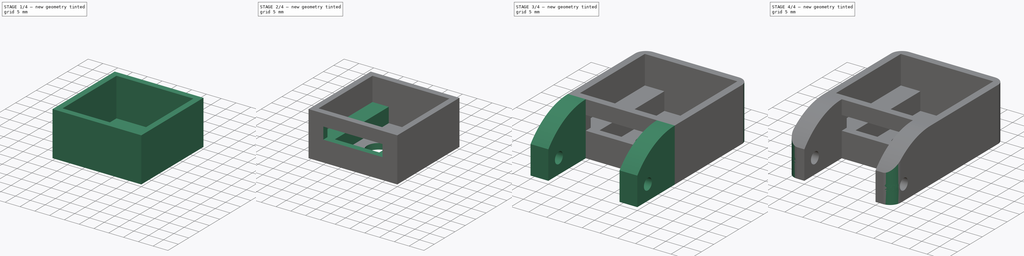
[diagram: build sequence overview — one tinted view per stage of 4, left to right]
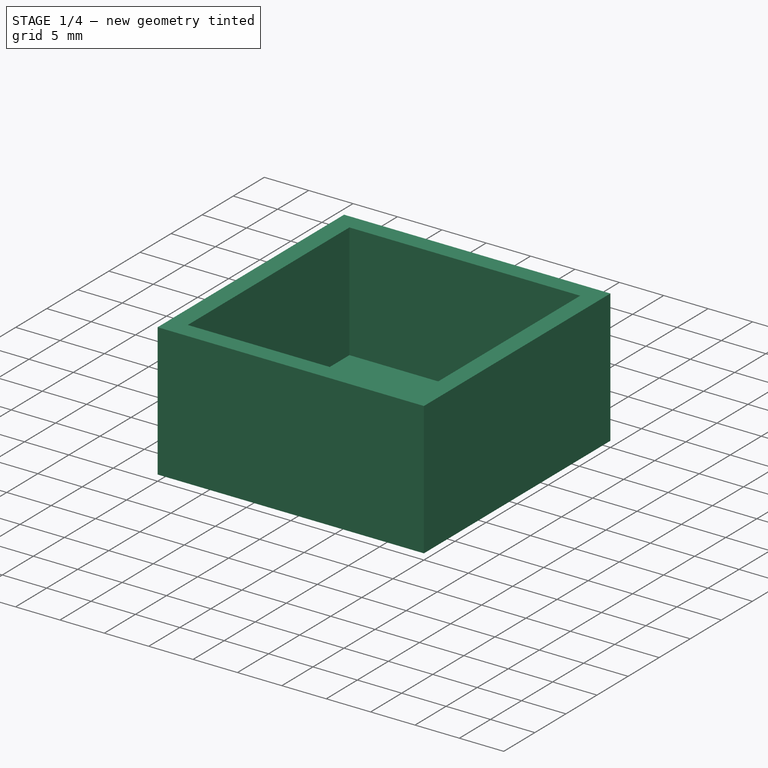
[diagram: stage 1 of 4 — iso view after this stage's code; geometry added in this stage tinted green]
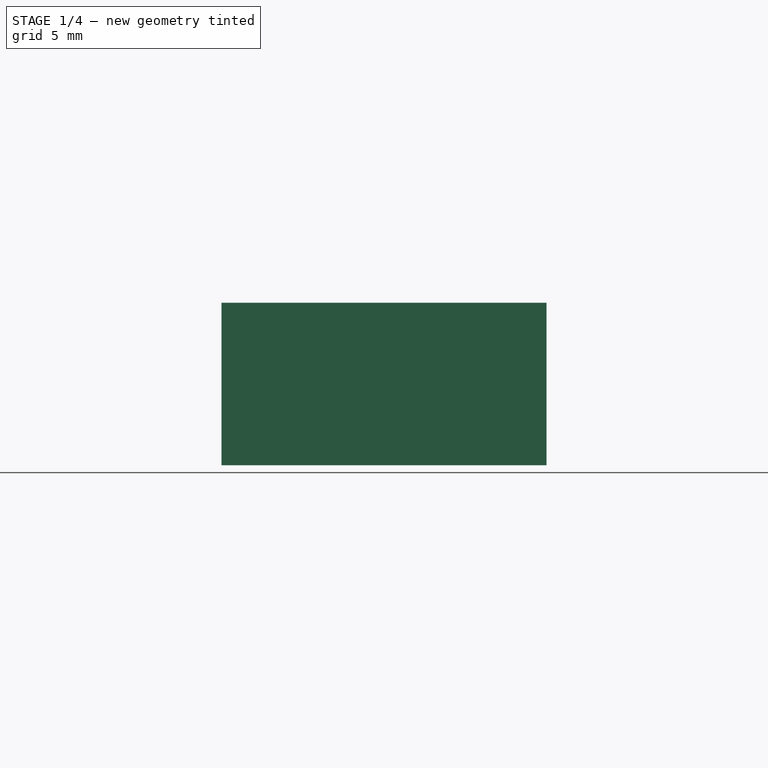
[diagram: stage 1 of 4 — front view after this stage's code; geometry added in this stage tinted green]
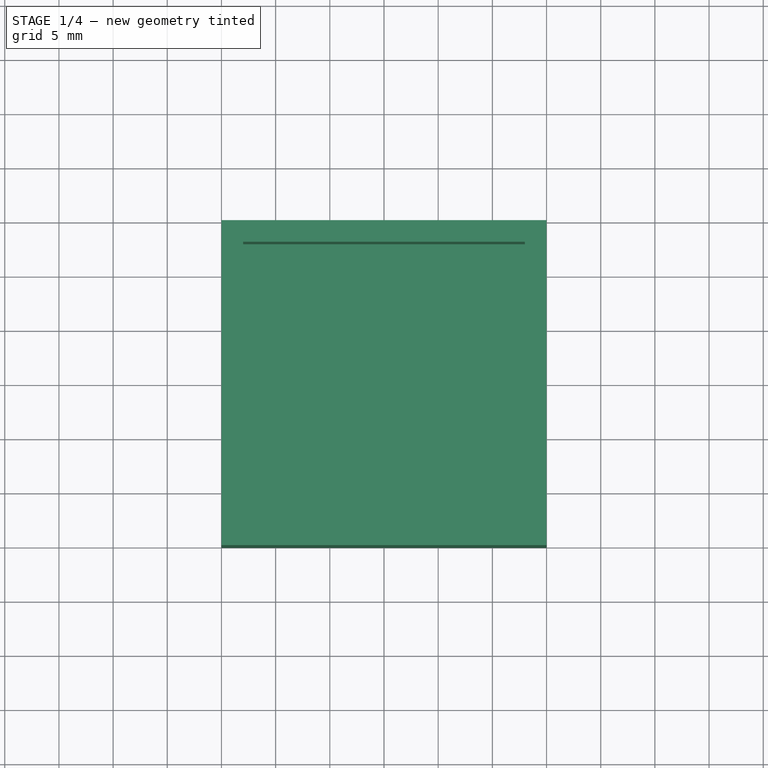
[diagram: stage 1 of 4 — top view after this stage's code; geometry added in this stage tinted green]
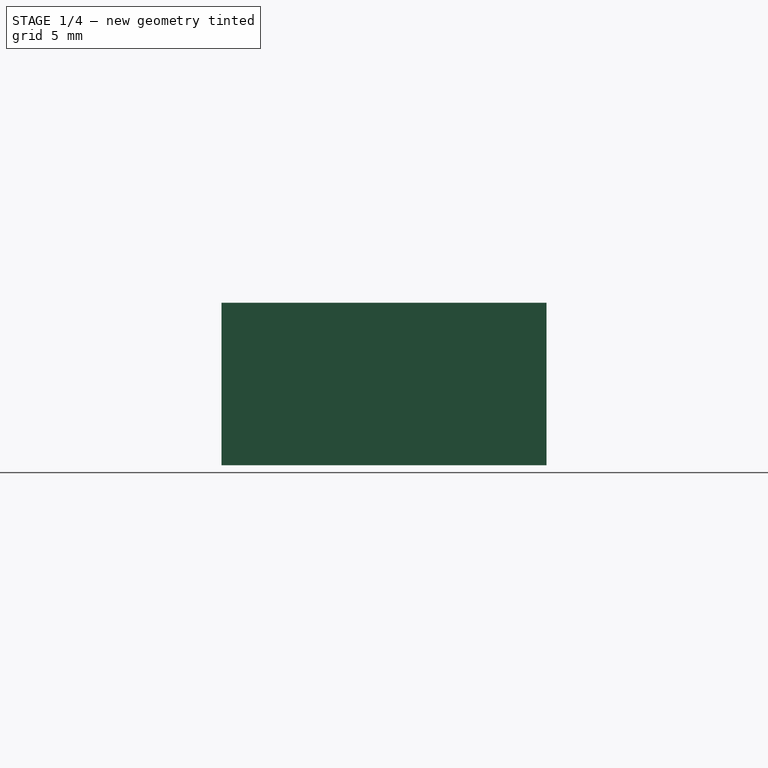
[diagram: stage 1 of 4 — right view after this stage's code; geometry added in this stage tinted green]
FCSTD DOCUMENT  (FreeCAD 0.19R24291 (Git))
Label: CamBox
License: All rights reserved
LicenseURL: http://en.wikipedia.org/wiki/All_rights_reserved
objects: Sketcher::SketchObject×7, App::MeasureDistance×5, PartDesign::Pocket×4, PartDesign::Pad×3, PartDesign::Fillet×3, PartDesign::Body×1
note: 28 computed .brp shape members not serialized (recipe doc carries the construction recipe); baked Part::Feature solids carry a one-line shape summary decoded from their .brp

FEATURE [Sketcher::SketchObject] Sketch
  FullyConstrained = true
  MapMode = 5
  Support = -> [XY_Plane]
  sketch-geometry (4):
    g0: LineSegment StartX=0 StartY=0 StartZ=0 EndX=-30 EndY=0 EndZ=0
    g1: LineSegment StartX=-30 StartY=0 StartZ=0 EndX=-30 EndY=30 EndZ=0
    g2: LineSegment StartX=-30 StartY=30 StartZ=0 EndX=0 EndY=30 EndZ=0
    g3: LineSegment StartX=0 StartY=30 StartZ=0 EndX=0 EndY=0 EndZ=0
  constraints (11):
    c: Coincident(g0,g1)
    c: Coincident(g1,g2)
    c: Coincident(g2,g3)
    c: Coincident(g3,g0)
    c: Horizontal(g0)
    c: Horizontal(g2)
    c: Vertical(g1)
    c: Vertical(g3)
    c: Coincident(g0,g-1)
    c: Equal(g2,g1)
    c: DistanceX(g2,g2) = 30
FEATURE [PartDesign::Pad] Pad
  Direction = (1,1,1)
  Length = 15
  Length2 = 100
  Profile = -> Sketch
  Type = 0
FEATURE [Sketcher::SketchObject] Sketch001
  ExternalGeometry = -> [Pad]
  FullyConstrained = true
  MapMode = 5
  Placement = pos=(0,0,15) rot=(0,0,1;0rad)
  Support = -> [Pad]
  sketch-geometry (4):
    g0: LineSegment StartX=-28 StartY=28 StartZ=0 EndX=-2 EndY=28 EndZ=0
    g1: LineSegment StartX=-2 StartY=28 StartZ=0 EndX=-2 EndY=2 EndZ=0
    g2: LineSegment StartX=-2 StartY=2 StartZ=0 EndX=-28 EndY=2 EndZ=0
    g3: LineSegment StartX=-28 StartY=2 StartZ=0 EndX=-28 EndY=28 EndZ=0
  constraints (12):
    c: Coincident(g0,g1)
    c: Coincident(g1,g2)
    c: Coincident(g2,g3)
    c: Coincident(g3,g0)
    c: Horizontal(g0)
    c: Horizontal(g2)
    c: Vertical(g1)
    c: Vertical(g3)
    c: DistanceX(g-2,g0) = -2
    c: Distance(g0,g-4) = 2
    c: Distance(g0,g-3) = 2
    c: Distance(g1,g-5) = 2
FEATURE [PartDesign::Pocket] Pocket
  BaseFeature = -> Pad
  Length = 13
  Length2 = 100
  Profile = -> Sketch001
  Type = 0
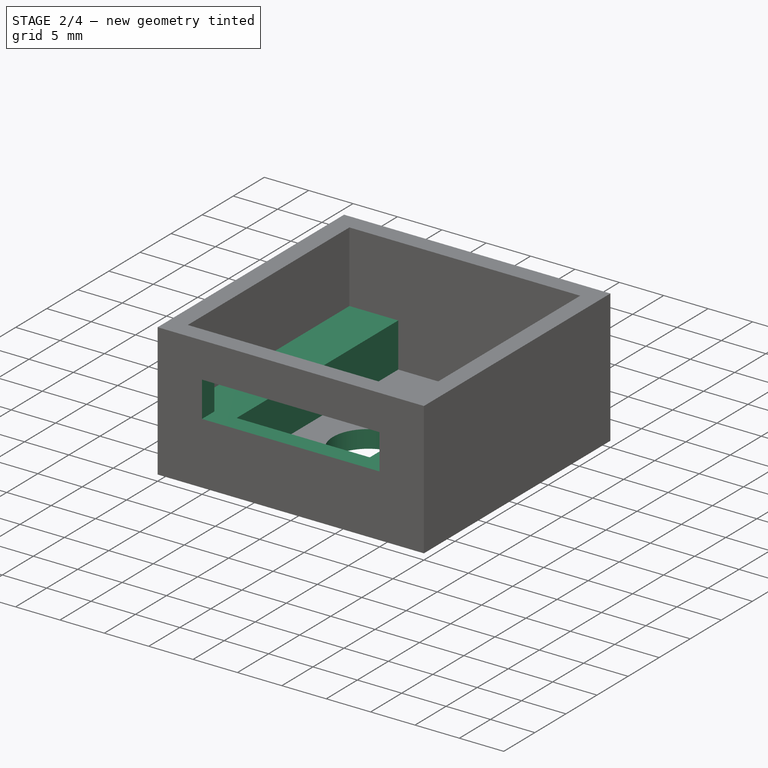
[diagram: stage 2 of 4 — iso view after this stage's code; geometry added in this stage tinted green]
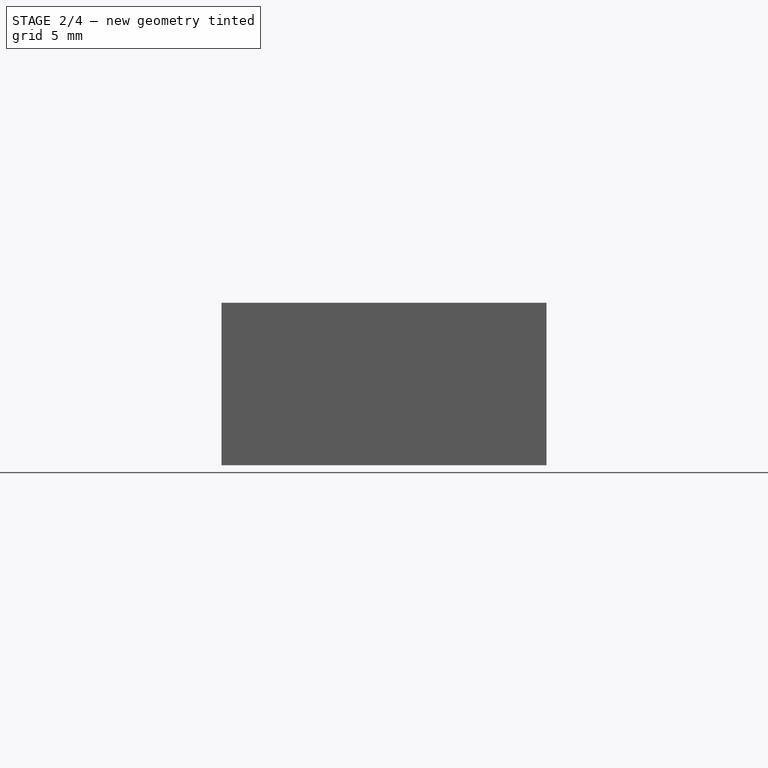
[diagram: stage 2 of 4 — front view after this stage's code; geometry added in this stage tinted green]
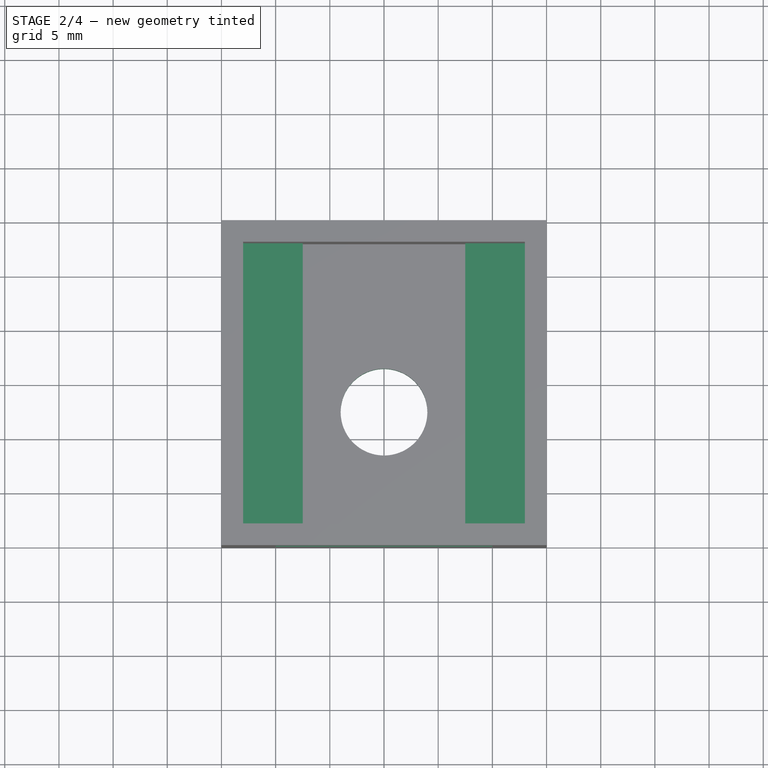
[diagram: stage 2 of 4 — top view after this stage's code; geometry added in this stage tinted green]
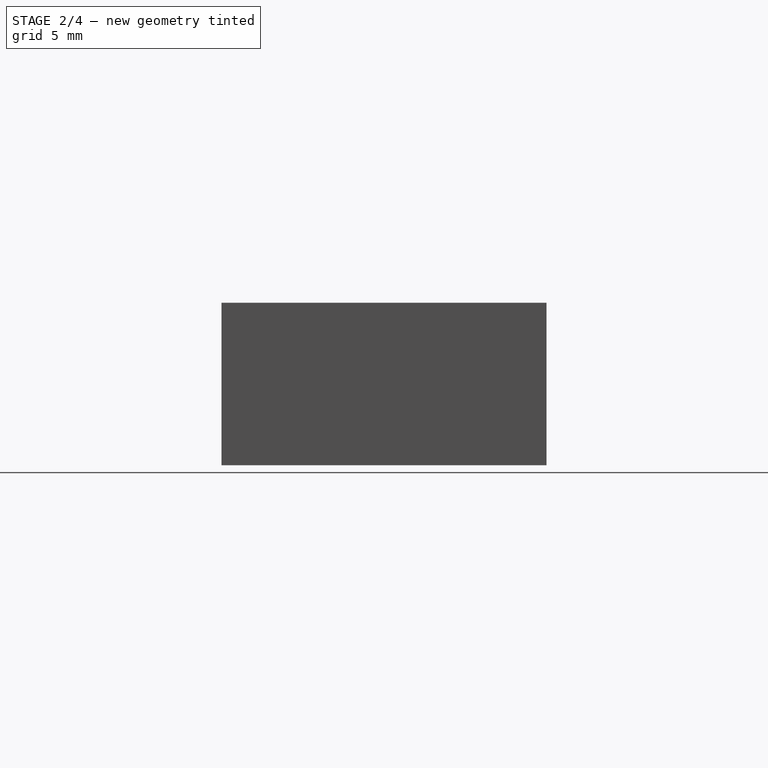
[diagram: stage 2 of 4 — right view after this stage's code; geometry added in this stage tinted green]
FEATURE [App::MeasureDistance] Distance  label="Distance: 25,97 mm"
  Distance = 25.9733
  P1 = (-27.9436,28,10)
  P2 = (-1.97036,27.9612,10)
FEATURE [App::MeasureDistance] Distance001  label="Distance: 26,00 mm"
  Distance = 26
  P1 = (-28,2,10)
  P2 = (-27.9801,28,10)
FEATURE [Sketcher::SketchObject] Sketch002
  ExternalGeometry = -> [Pocket]
  FullyConstrained = true
  MapMode = 5
  Placement = pos=(0,0,2) rot=(0,0,1;0rad)
  Support = -> [Pocket]
  sketch-geometry (8):
    g0: LineSegment StartX=-28 StartY=28 StartZ=0 EndX=-22.5 EndY=28 EndZ=0
    g1: LineSegment StartX=-22.5 StartY=28 StartZ=0 EndX=-22.5 EndY=2 EndZ=0
    g2: LineSegment StartX=-22.5 StartY=2 StartZ=0 EndX=-28 EndY=2 EndZ=0
    g3: LineSegment StartX=-28 StartY=2 StartZ=0 EndX=-28 EndY=28 EndZ=0
    g4: LineSegment StartX=-2 StartY=2 StartZ=0 EndX=-7.5 EndY=2 EndZ=0
    g5: LineSegment StartX=-7.5 StartY=2 StartZ=0 EndX=-7.5 EndY=28 EndZ=0
    g6: LineSegment StartX=-7.5 StartY=28 StartZ=0 EndX=-2 EndY=28 EndZ=0
    g7: LineSegment StartX=-2 StartY=28 StartZ=0 EndX=-2 EndY=2 EndZ=0
  constraints (22):
    c: Coincident(g0,g1)
    c: Coincident(g1,g2)
    c: Coincident(g2,g3)
    c: Coincident(g3,g0)
    c: Horizontal(g0)
    c: Horizontal(g2)
    c: Vertical(g1)
    c: Vertical(g3)
    c: Coincident(g0,g-4)
    c: PointOnObject(g1,g-5)
    c: Coincident(g4,g5)
    c: Coincident(g5,g6)
    c: Coincident(g6,g7)
    c: Coincident(g7,g4)
    c: Horizontal(g4)
    c: Horizontal(g6)
    c: Vertical(g5)
    c: Vertical(g7)
    c: Coincident(g4,g-5)
    c: PointOnObject(g5,g-4)
    c: DistanceX(g0,g0) = 5.5
    c: DistanceX(g6,g6) = 5.5
FEATURE [PartDesign::Pad] Pad001
  BaseFeature = -> Pocket
  Direction = (1,1,1)
  Length = 5
  Length2 = 100
  Profile = -> Sketch002
  Type = 0
FEATURE [App::MeasureDistance] Distance002  label="Distance: 8,00 mm"
  Distance = 8.0018
  P1 = (-2.24877,2.01189,7)
  P2 = (-2.41825,2,15)
FEATURE [Sketcher::SketchObject] Sketch003
  ExternalGeometry = -> [Pad001]
  FullyConstrained = true
  MapMode = 5
  Placement = pos=(0,2,0) rot=(0,0.707107,0.707107;3.14159rad)
  Support = -> [Pad001]
  sketch-geometry (4):
    g0: LineSegment StartX=5 StartY=11 StartZ=0 EndX=25 EndY=11 EndZ=0
    g1: LineSegment StartX=25 StartY=11 StartZ=0 EndX=25 EndY=7 EndZ=0
    g2: LineSegment StartX=25 StartY=7 StartZ=0 EndX=5 EndY=7 EndZ=0
    g3: LineSegment StartX=5 StartY=7 StartZ=0 EndX=5 EndY=11 EndZ=0
  constraints (12):
    c: Coincident(g0,g1)
    c: Coincident(g1,g2)
    c: Coincident(g2,g3)
    c: Coincident(g3,g0)
    c: Horizontal(g0)
    c: Horizontal(g2)
    c: Vertical(g1)
    c: Vertical(g3)
    c: PointOnObject(g1,g-4)
    c: DistanceX(g0,g0) = 20
    c: DistanceY(g1,g1) = 4
    c: Distance(g0,g-5) = 3
FEATURE [PartDesign::Pocket] Pocket001
  BaseFeature = -> Pad001
  Length = 5
  Length2 = 100
  Profile = -> Sketch003
  Type = 0
FEATURE [Sketcher::SketchObject] Sketch004
  ExternalGeometry = -> [Pocket001]
  FullyConstrained = true
  MapMode = 5
  Placement = pos=(0,0,2) rot=(0,0,1;0rad)
  Support = -> [Pocket001]
  sketch-geometry (3):
    g0: Circle CenterX=-15 CenterY=12.5 CenterZ=0 NormalX=0 NormalY=0 NormalZ=1 AngleXU=0 Radius=4
    g1: LineSegment StartX=-22.5 StartY=28 StartZ=0 EndX=-15 EndY=12.5 EndZ=0
    g2: LineSegment StartX=-15 StartY=12.5 StartZ=0 EndX=-7.5 EndY=28 EndZ=0
  constraints (7):
    c: Coincident(g1,g-3)
    c: Coincident(g1,g0)
    c: Coincident(g2,g1)
    c: Coincident(g2,g-3)
    c: Equal(g2,g1)
    c: Distance(g0,g-4) = 10.5
    c: Radius(g0) = 4
FEATURE [PartDesign::Pocket] Pocket002
  BaseFeature = -> Pocket001
  Length = 5
  Length2 = 100
  Profile = -> Sketch004
  Type = 0
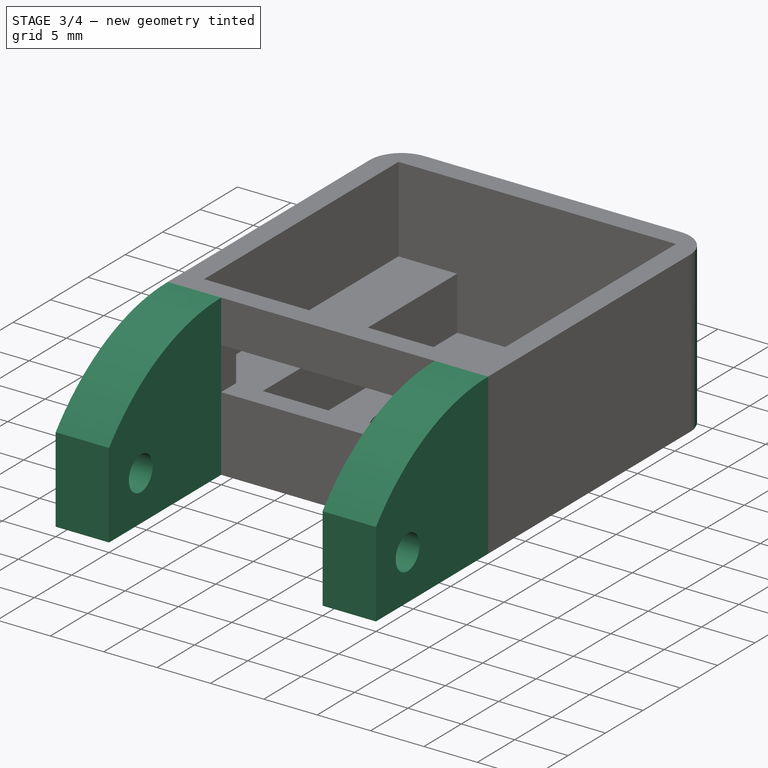
[diagram: stage 3 of 4 — iso view after this stage's code; geometry added in this stage tinted green]
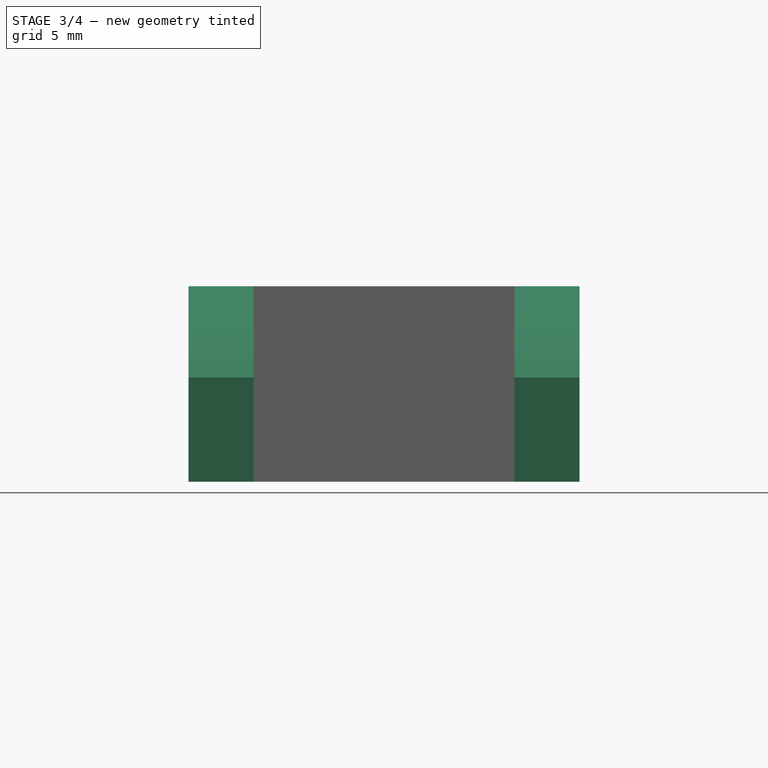
[diagram: stage 3 of 4 — front view after this stage's code; geometry added in this stage tinted green]
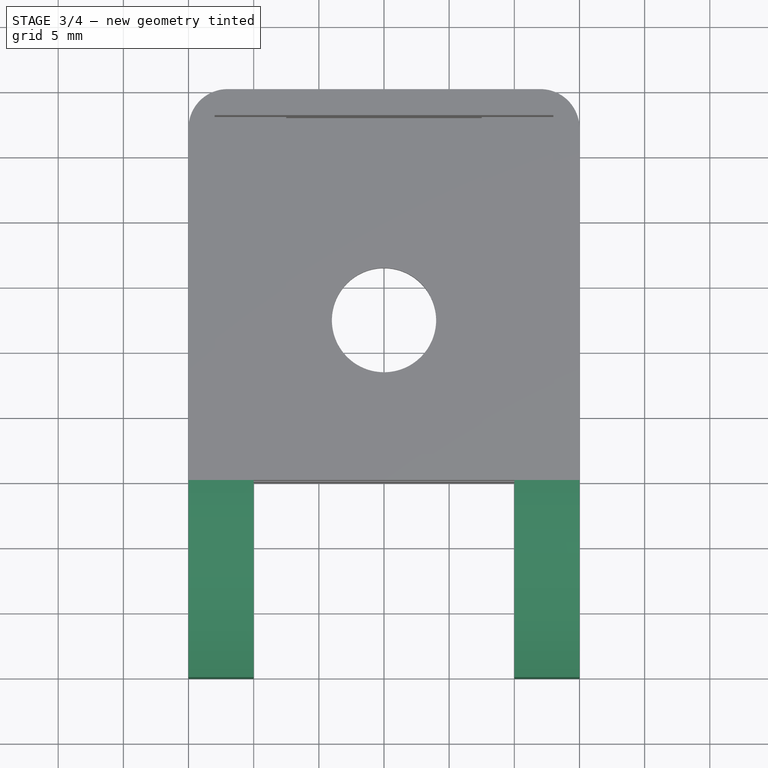
[diagram: stage 3 of 4 — top view after this stage's code; geometry added in this stage tinted green]
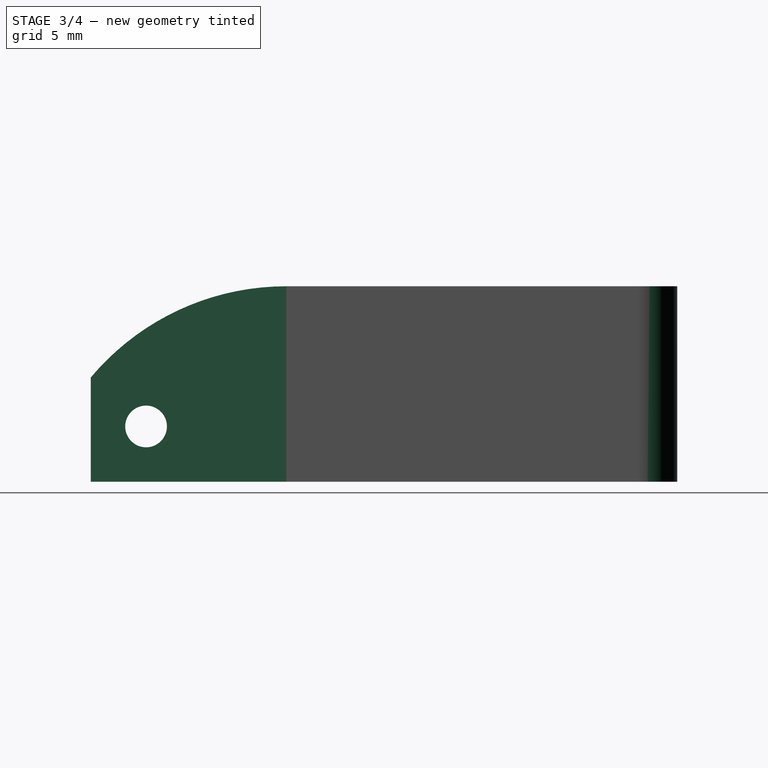
[diagram: stage 3 of 4 — right view after this stage's code; geometry added in this stage tinted green]
FEATURE [App::MeasureDistance] Distance003  label="Distance: 2,00 mm"
  Distance = 2.0001
  P1 = (-28,27.7178,15)
  P2 = (-30,27.6974,15)
FEATURE [Sketcher::SketchObject] Sketch005
  ExternalGeometry = -> [Pocket002]
  FullyConstrained = true
  MapMode = 5
  Placement = pos=(0,0,0) rot=(1,0,0;1.5708rad)
  Support = -> [Pocket002]
  sketch-geometry (8):
    g0: LineSegment StartX=-30 StartY=15 StartZ=0 EndX=-25 EndY=15 EndZ=0
    g1: LineSegment StartX=-25 StartY=15 StartZ=0 EndX=-25 EndY=0 EndZ=0
    g2: LineSegment StartX=-25 StartY=0 StartZ=0 EndX=-30 EndY=0 EndZ=0
    g3: LineSegment StartX=-30 StartY=0 StartZ=0 EndX=-30 EndY=15 EndZ=0
    g4: LineSegment StartX=0 StartY=15 StartZ=0 EndX=-5 EndY=15 EndZ=0
    g5: LineSegment StartX=-5 StartY=15 StartZ=0 EndX=-5 EndY=0 EndZ=0
    g6: LineSegment StartX=-5 StartY=0 StartZ=0 EndX=0 EndY=0 EndZ=0
    g7: LineSegment StartX=0 StartY=0 StartZ=0 EndX=0 EndY=15 EndZ=0
  constraints (22):
    c: Coincident(g0,g1)
    c: Coincident(g1,g2)
    c: Coincident(g2,g3)
    c: Coincident(g3,g0)
    c: Horizontal(g0)
    c: Horizontal(g2)
    c: Vertical(g1)
    c: Vertical(g3)
    c: Coincident(g0,g-4)
    c: PointOnObject(g1,g-1)
    c: Coincident(g4,g5)
    c: Coincident(g5,g6)
    c: Coincident(g6,g7)
    c: Coincident(g7,g4)
    c: Horizontal(g4)
    c: Horizontal(g6)
    c: Vertical(g5)
    c: Vertical(g7)
    c: Coincident(g4,g-3)
    c: PointOnObject(g5,g-1)
    c: PointOnObject(g-6,g5)
    c: PointOnObject(g-5,g1)
FEATURE [PartDesign::Pad] Pad002
  BaseFeature = -> Pocket002
  Direction = (1,1,1)
  Length = 15
  Length2 = 100
  Profile = -> Sketch005
  Type = 0
FEATURE [Sketcher::SketchObject] Sketch006
  ExternalGeometry = -> [Pad002]
  FullyConstrained = true
  MapMode = 5
  Placement = pos=(0,0,0) rot=(0.57735,0.57735,0.57735;2.0944rad)
  Support = -> [Pad002]
  sketch-geometry (6):
    g0: Circle CenterX=-10.7574 CenterY=4.24264 CenterZ=0 NormalX=0 NormalY=0 NormalZ=1 AngleXU=0 Radius=1.6
    g1: LineSegment StartX=-15 StartY=3.3e-15 StartZ=0 EndX=-10.7574 EndY=4.24264 EndZ=0
    g2: GeomPoint X=-15 Y=8 Z=0
    g3: ArcOfCircle CenterX=0 CenterY=-4.57143 CenterZ=0 NormalX=0 NormalY=0 NormalZ=1 AngleXU=0 Radius=19.5714 StartAngle=1.5708 EndAngle=2.44405
    g4: LineSegment StartX=-15 StartY=8 StartZ=0 EndX=-15 EndY=15 EndZ=0
    g5: LineSegment StartX=-15 StartY=15 StartZ=0 EndX=3.6e-15 EndY=15 EndZ=0
  constraints (14):
    c: Radius(g0) = 1.6
    c: Coincident(g1,g-4)
    c: Coincident(g1,g0)
    c: Angle(g1,g-3) = 0.785398
    c: Distance(g1) = 6
    c: PointOnObject(g2,g-3)
    c: Distance(g1,g2) = 8
    c: Coincident(g3,g2)
    c: Coincident(g3,g-5)
    c: Coincident(g4,g3)
    c: Coincident(g4,g-5)
    c: Coincident(g5,g4)
    c: Coincident(g5,g3)
    c: PointOnObject(g3,g-2)
FEATURE [PartDesign::Pocket] Pocket003
  BaseFeature = -> Pad002
  Length = 5
  Length2 = 100
  Profile = -> Sketch006
  Type = 1
FEATURE [PartDesign::Fillet] Fillet
  Base = -> Pocket003 [Edge36,Edge32]
  BaseFeature = -> Pocket003
  Radius = 3
  SupportTransform = false
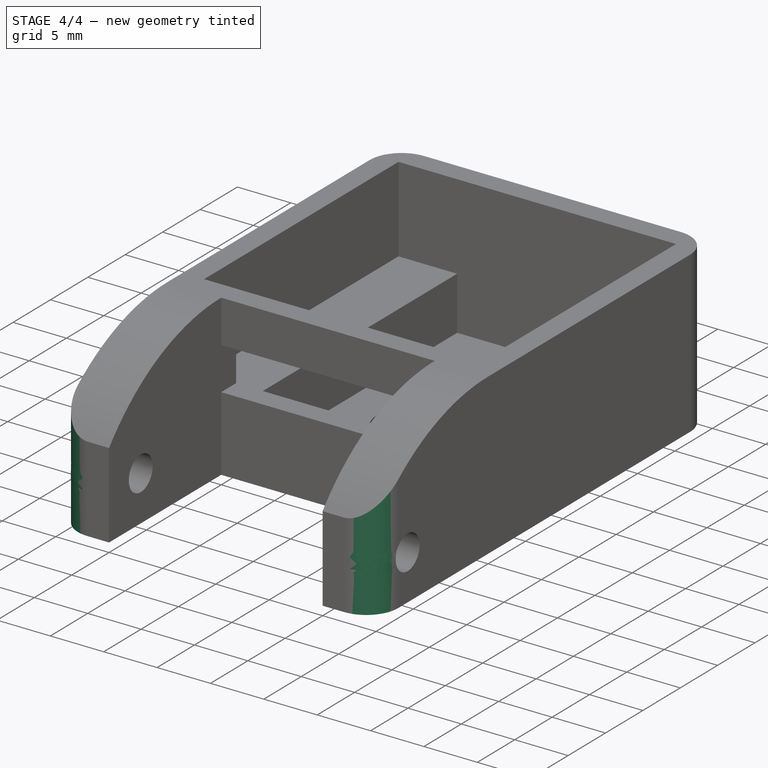
[diagram: stage 4 of 4 — iso view after this stage's code; geometry added in this stage tinted green]
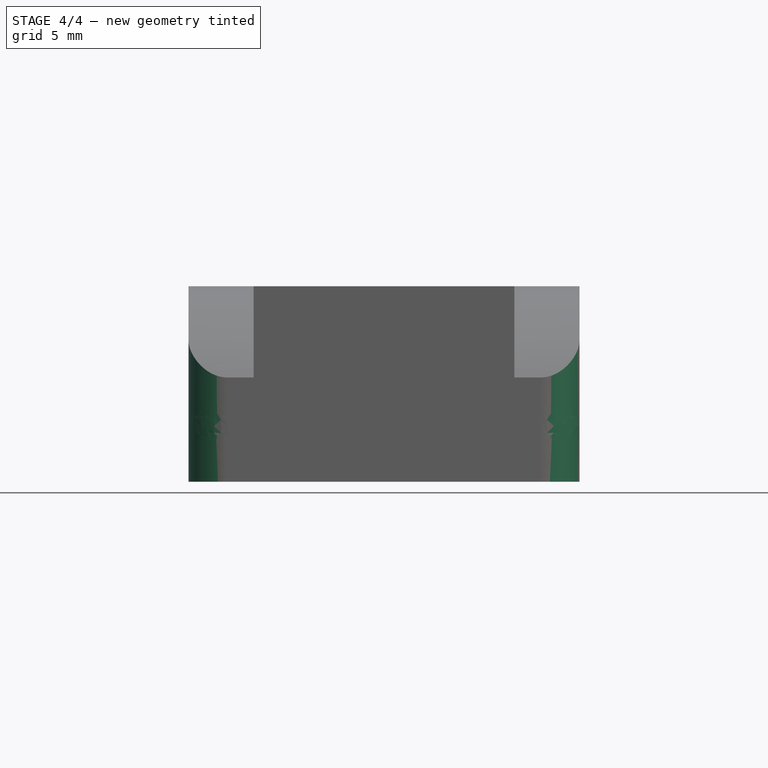
[diagram: stage 4 of 4 — front view after this stage's code; geometry added in this stage tinted green]
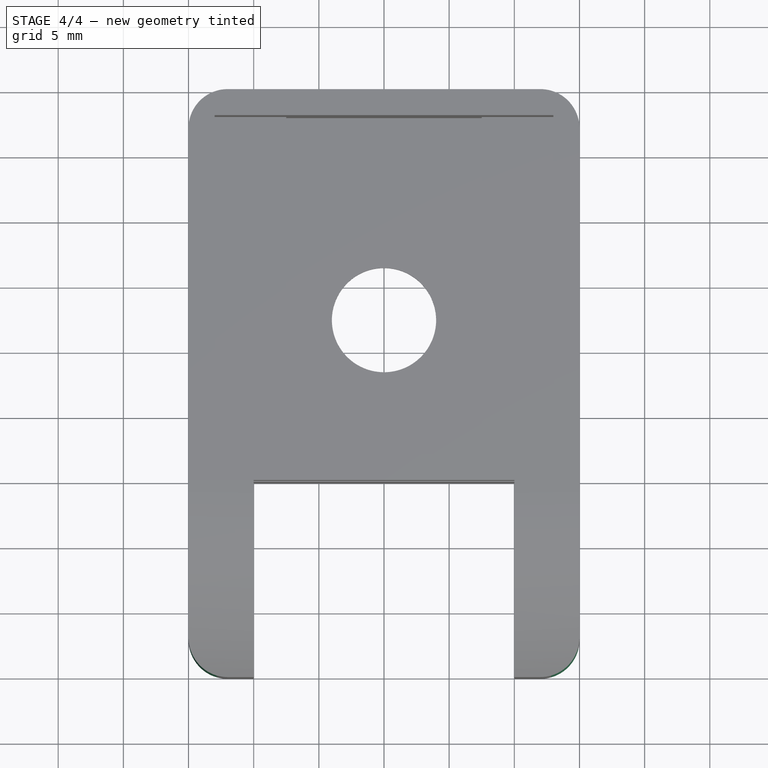
[diagram: stage 4 of 4 — top view after this stage's code; geometry added in this stage tinted green]
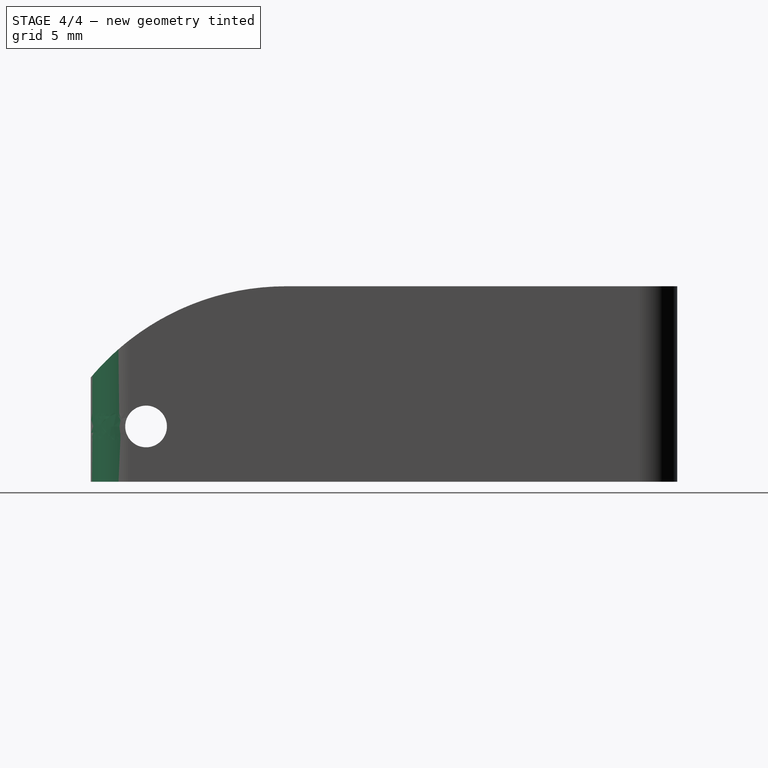
[diagram: stage 4 of 4 — right view after this stage's code; geometry added in this stage tinted green]
FEATURE [PartDesign::Fillet] Fillet001
  Base = -> Fillet [Edge59,Edge33]
  BaseFeature = -> Fillet
  Radius = 3
  SupportTransform = false
FEATURE [PartDesign::Fillet] Fillet002
  Base = -> Fillet001 [Edge21]
  BaseFeature = -> Fillet001
  Radius = 1
  SupportTransform = false
FEATURE [PartDesign::Body] Body
  Group = -> [Sketch,Pad,Sketch001,Pocket,Sketch002,Pad001,Sketch003,Pocket001,Sketch004,Pocket002,Sketch005,Pad002,Sketch006,Pocket003,Fillet,Fillet001,Fillet002]
  Origin = -> Origin
  Tip = -> Fillet002
FEATURE [App::MeasureDistance] Distance004  label="Distance: 20,00 mm"
  Distance = 20
  P1 = (-25,-15,8)
  P2 = (-5,-15,8)
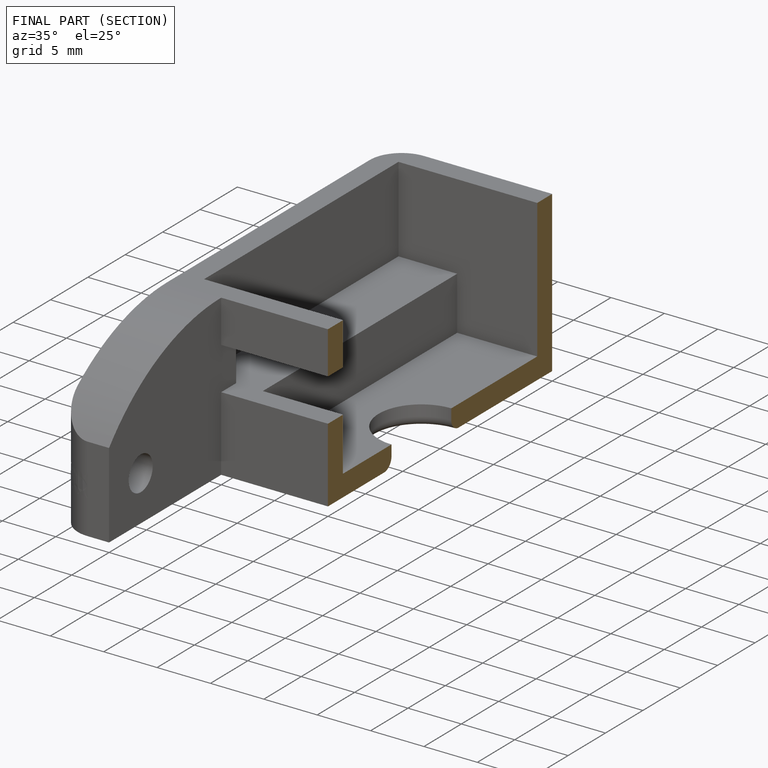
[diagram: finished part — half-section view (interior)]
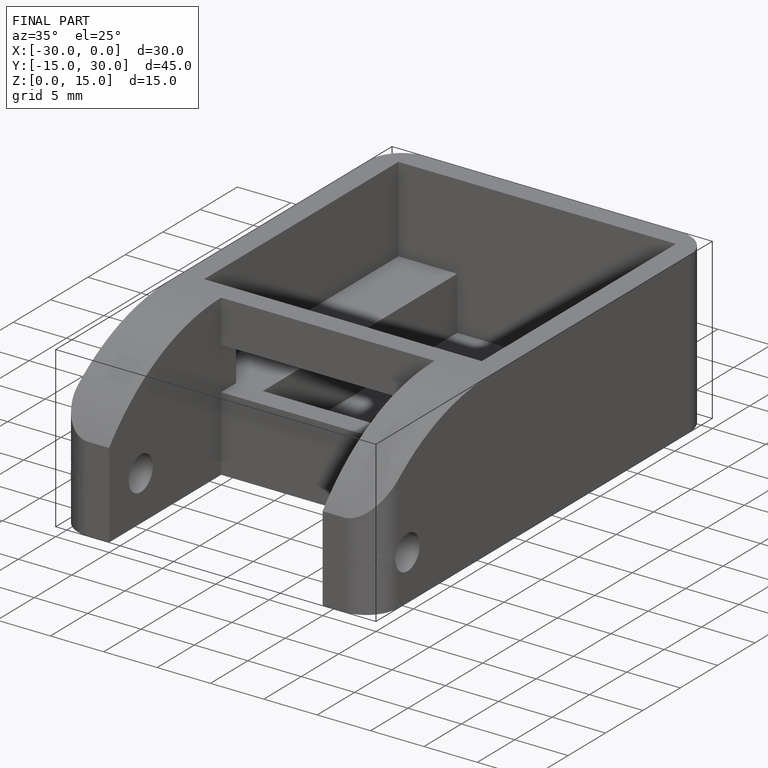
[diagram: finished part — iso view with bounding-box wireframe]
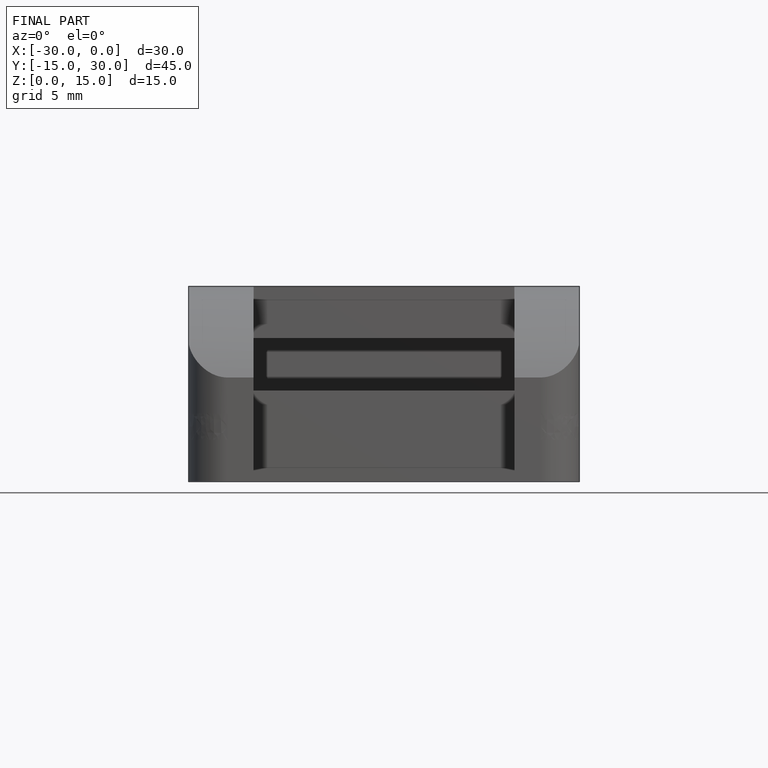
[diagram: finished part — front view with bounding-box wireframe]
